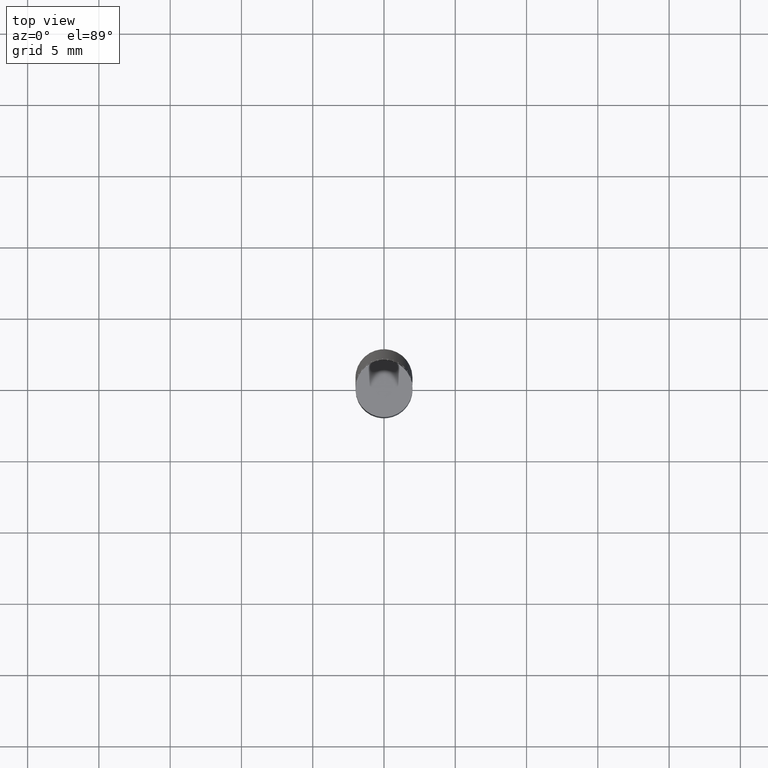
[diagram: clean part render]
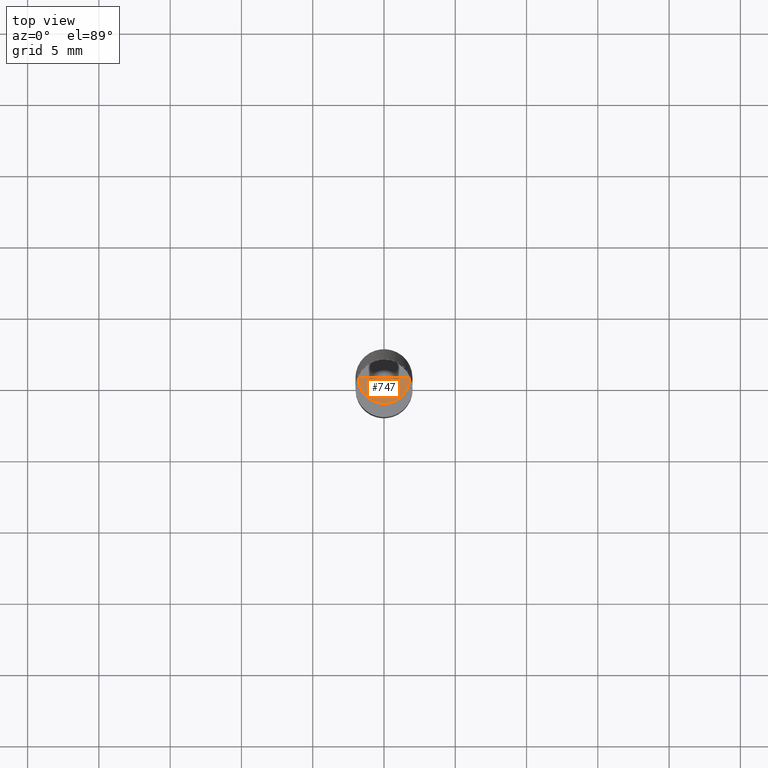
[diagram: same view with one face highlighted and labeled with its STEP entity id]
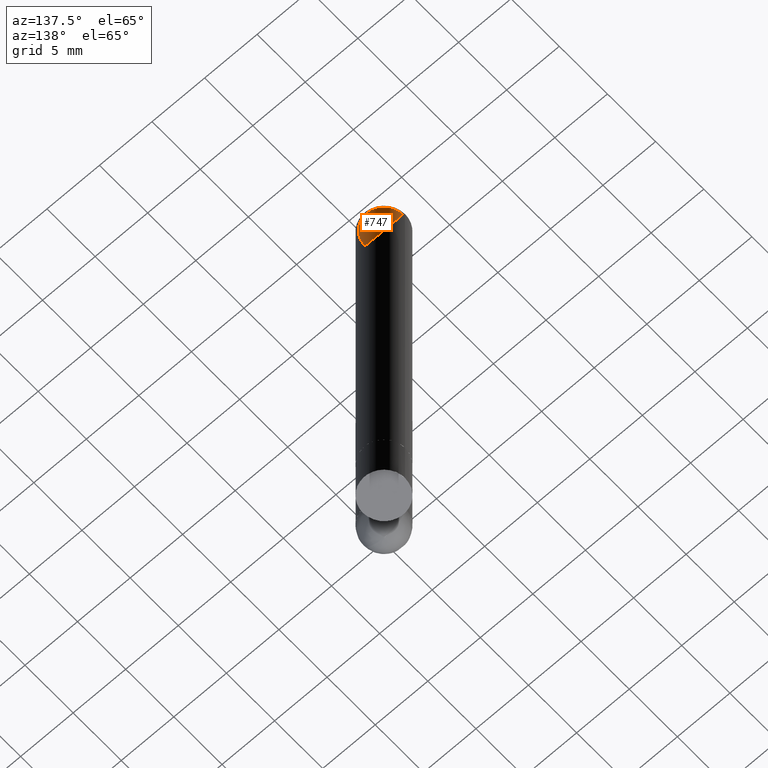
[diagram: same view with one face highlighted and labeled with its STEP entity id]
A machine part, top view. The second image highlights one B-rep face of the part: STEP entity #747.
A second angle (auxiliary view) of the same face is appended — the face is thin or edge-on in the first view.
In plain terms, the highlighted face is a freeform B-spline surface patch.
Its self-contained STEP definition (entity closure, byte-faithful):
#435=CARTESIAN_POINT('',(1.8,0.0,39.0));
#439=CARTESIAN_POINT('',(-1.8,0.0,39.0));
#440=CARTESIAN_POINT('',(0.0,0.0,39.0));
#447=CARTESIAN_POINT('',(-1.8,-1.8,39.0));
#448=CARTESIAN_POINT('',(0.0,-1.8,39.0));
#449=CARTESIAN_POINT('',(1.8,-1.8,39.0));
#732=(
BOUNDED_SURFACE()
B_SPLINE_SURFACE(1,2,(
(#439,#447,#448,#449,#435),
(#440,#440,#440,#440,#440)
), .UNSPECIFIED.,.F.,.F.,.F.)
B_SPLINE_SURFACE_WITH_KNOTS((2,2),(3,2,3),(
0.0,1.0),(
0.0,0.5,1.0), .UNSPECIFIED.)
GEOMETRIC_REPRESENTATION_ITEM()
RATIONAL_B_SPLINE_SURFACE(((1.0,0.707106781187,1.0,0.707106781187,1.0),
(1.0,0.707106781187,1.0,0.707106781187,1.0)
))
REPRESENTATION_ITEM('')
SURFACE()
);
#733=(
BOUNDED_CURVE()
B_SPLINE_CURVE(2,(#435,#449,#448,#447,#439),.UNSPECIFIED.,.F.,.F.)
B_SPLINE_CURVE_WITH_KNOTS((3,2,3),
(0.0,0.5,1.0),.UNSPECIFIED.)
CURVE()
GEOMETRIC_REPRESENTATION_ITEM()
RATIONAL_B_SPLINE_CURVE((1.0,0.707106781187,1.0,0.707106781187,1.0))
REPRESENTATION_ITEM('')
);
#734=(
BOUNDED_CURVE()
B_SPLINE_CURVE(1,(#439,#440),.UNSPECIFIED.,.F.,.F.)
B_SPLINE_CURVE_WITH_KNOTS((2,2),
(0.0,1.0),.UNSPECIFIED.)
CURVE()
GEOMETRIC_REPRESENTATION_ITEM()
RATIONAL_B_SPLINE_CURVE((1.0,1.0))
REPRESENTATION_ITEM('')
);
#735=(
BOUNDED_CURVE()
B_SPLINE_CURVE(1,(#440,#435),.UNSPECIFIED.,.F.,.F.)
B_SPLINE_CURVE_WITH_KNOTS((2,2),
(0.0,1.0),.UNSPECIFIED.)
CURVE()
GEOMETRIC_REPRESENTATION_ITEM()
RATIONAL_B_SPLINE_CURVE((1.0,1.0))
REPRESENTATION_ITEM('')
);
#736=VERTEX_POINT('',#435);
#737=VERTEX_POINT('',#439);
#738=VERTEX_POINT('',#440);
#739=EDGE_CURVE('',#736,#737,#733,.T.);
#740=EDGE_CURVE('',#737,#738,#734,.T.);
#741=EDGE_CURVE('',#738,#736,#735,.T.);
#742=ORIENTED_EDGE('',*,*,#739,.T.);
#743=ORIENTED_EDGE('',*,*,#740,.T.);
#744=ORIENTED_EDGE('',*,*,#741,.T.);
#745=EDGE_LOOP('',(#742,#743,#744));
#746=FACE_OUTER_BOUND('',#745,.T.);
#747=ADVANCED_FACE('',(#746),#732,.T.);